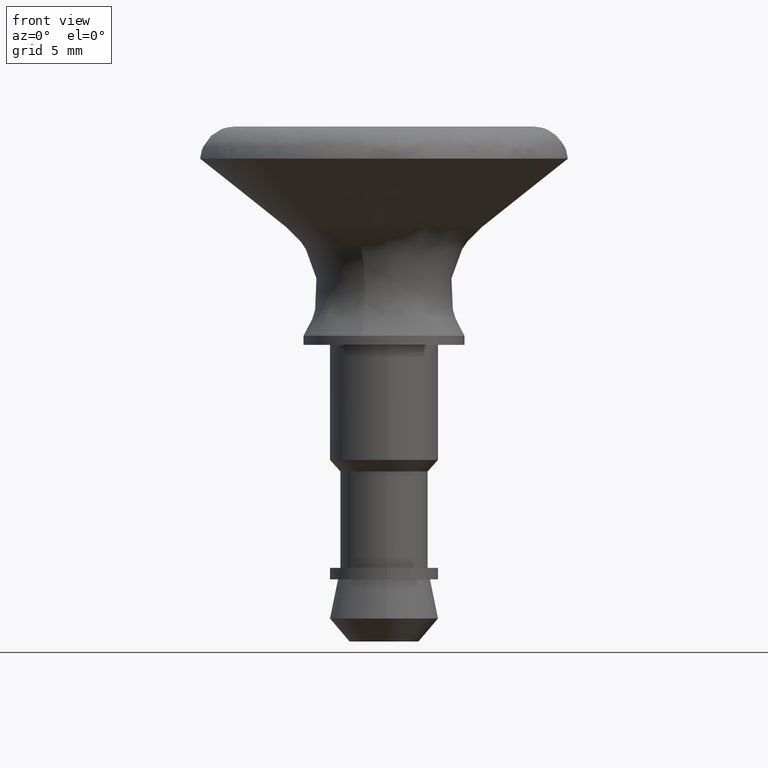
[diagram: clean part render]
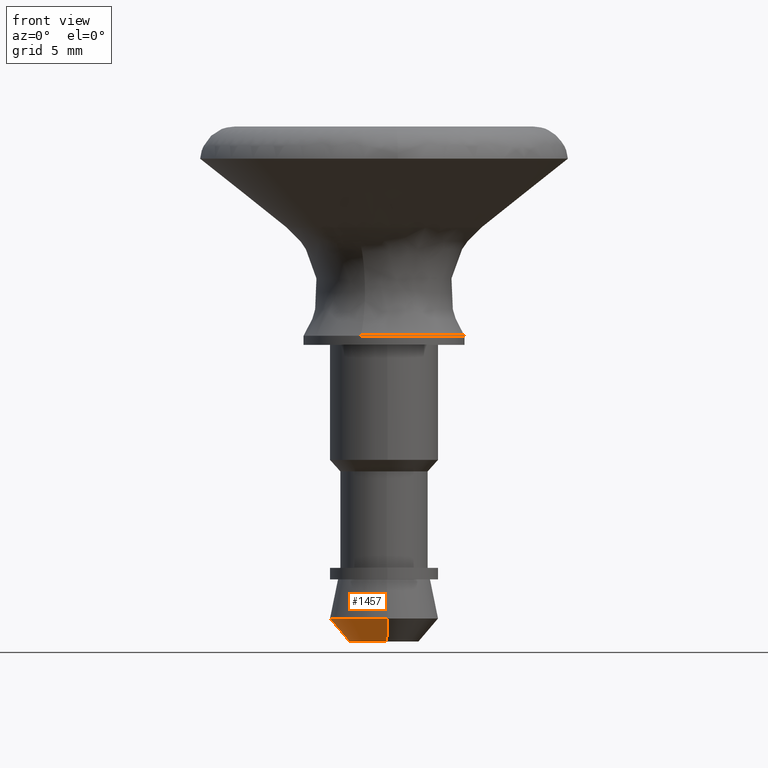
[diagram: same view with one face highlighted and labeled with its STEP entity id]
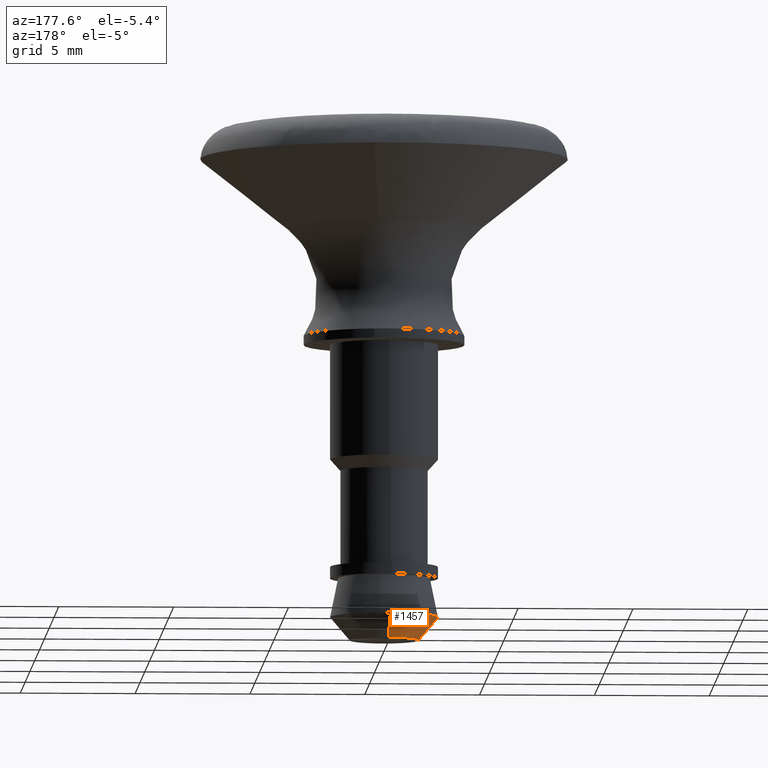
[diagram: same view with one face highlighted and labeled with its STEP entity id]
A machine part, front view. The second image highlights one B-rep face of the part: STEP entity #1457.
A second angle (auxiliary view) of the same face is appended — the face is thin or edge-on in the first view.
In plain terms, the highlighted face is a freeform B-spline surface patch.
Its self-contained STEP definition (entity closure, byte-faithful):
#1258=CARTESIAN_POINT('',(0.153692986142640,-2.344905054886845,-11.900017217113840));
#1259=VERTEX_POINT('',#1258);
#1307=CARTESIAN_POINT('',(-0.184378875007408,2.342755734274979,-11.899999999993170));
#1308=VERTEX_POINT('',#1307);
#1324=CARTESIAN_POINT('',(-2.350000000000000,0.0,-11.900000000000000));
#1325=VERTEX_POINT('',#1324);
#1326=CARTESIAN_POINT('',(-2.350000000000000,0.0,-11.900000000000000));
#1327=CARTESIAN_POINT('',(-2.350000000000001,2.172317655310255,-11.900000000000000));
#1328=CARTESIAN_POINT('',(-0.184378875007408,2.342755734274979,-11.899999999993168));
#1336=(BOUNDED_CURVE()B_SPLINE_CURVE(2,(#1326,#1327,#1328),.UNSPECIFIED.,.F.,.U.)B_SPLINE_CURVE_WITH_KNOTS((3,3),(0.0,0.236331300625960),.UNSPECIFIED.)CURVE()GEOMETRIC_REPRESENTATION_ITEM()RATIONAL_B_SPLINE_CURVE((1.0,0.723120658613172,0.969723356157609))REPRESENTATION_ITEM(''));
#1337=EDGE_CURVE('',#1325,#1308,#1336,.T.);
#1339=CARTESIAN_POINT('',(0.153692986142640,-2.344905054886846,-11.900017217113831));
#1340=CARTESIAN_POINT('',(0.076926835432969,-2.349937543892106,-11.900016953165647));
#1341=CARTESIAN_POINT('',(-0.000004025535872,-2.349938582107781,-11.900016671351059));
#1342=CARTESIAN_POINT('',(-2.350001946876827,-2.349970296359317,-11.900008062794141));
#1343=CARTESIAN_POINT('',(-2.350000000000000,0.0,-11.900000000000000));
#1351=(BOUNDED_CURVE()B_SPLINE_CURVE(2,(#1339,#1340,#1341,#1342,#1343),.UNSPECIFIED.,.F.,.U.)B_SPLINE_CURVE_WITH_KNOTS((3,2,3),(0.738580720876334,0.750000000000000,1.0),.UNSPECIFIED.)CURVE()GEOMETRIC_REPRESENTATION_ITEM()RATIONAL_B_SPLINE_CURVE((0.974465148868370,0.986621482323761,1.0,0.707106781186547,1.0))REPRESENTATION_ITEM(''));
#1352=EDGE_CURVE('',#1259,#1325,#1351,.T.);
#1391=CARTESIAN_POINT('',(-0.116013345750239,1.474089323231154,-12.925000000000001));
#1392=CARTESIAN_POINT('',(-1.590102668981393,1.358075977480914,-12.925000000000002));
#1393=CARTESIAN_POINT('',(-1.474089323231154,-0.116013345750239,-12.925000000000001));
#1394=CARTESIAN_POINT('',(-1.358075977480914,-1.590102668981393,-12.925000000000002));
#1395=CARTESIAN_POINT('',(0.116013345750239,-1.474089323231154,-12.925000000000001));
#1396=CARTESIAN_POINT('',(-0.186088013190692,2.364472394548896,-11.874375000000001));
#1397=CARTESIAN_POINT('',(-2.550560407739587,2.178384381358204,-11.874375000000001));
#1398=CARTESIAN_POINT('',(-2.364472394548896,-0.186088013190692,-11.874375000000001));
#1399=CARTESIAN_POINT('',(-2.178384381358204,-2.550560407739587,-11.874375000000001));
#1400=CARTESIAN_POINT('',(0.186088013190692,-2.364472394548896,-11.874375000000001));
#1408=(BOUNDED_SURFACE()B_SPLINE_SURFACE(2,1,((#1391,#1396),(#1392,#1397),(#1393,#1398),(#1394,#1399),(#1395,#1400)),.UNSPECIFIED.,.F.,.F.,.U.)B_SPLINE_SURFACE_WITH_KNOTS((3,2,3),(2,2),(0.0,3.929700088617869,7.859400177235737),(0.0,1.0),.UNSPECIFIED.)GEOMETRIC_REPRESENTATION_ITEM()RATIONAL_B_SPLINE_SURFACE(((1.0,1.0),(0.707106781186548,0.707106781186548),(1.0,1.0),(0.707106781186548,0.707106781186548),(1.0,1.0)))REPRESENTATION_ITEM('')SURFACE());
#1409=ORIENTED_EDGE('',*,*,#1337,.T.);
#1410=CARTESIAN_POINT('',(-0.117680797802618,1.495276308871712,-12.899999999982560));
#1411=VERTEX_POINT('',#1410);
#1412=CARTESIAN_POINT('',(-0.117680797802618,1.495276308871712,-12.899999999982560));
#1413=CARTESIAN_POINT('',(-0.184378875007408,2.342755734274979,-11.899999999993170));
#1414=QUASI_UNIFORM_CURVE('',1,(#1412,#1413),.UNSPECIFIED.,.F.,.U.);
#1415=EDGE_CURVE('',#1411,#1308,#1414,.T.);
#1416=ORIENTED_EDGE('',*,*,#1415,.F.);
#1417=CARTESIAN_POINT('',(-1.499900000000000,0.0,-12.900000000000000));
#1418=VERTEX_POINT('',#1417);
#1419=CARTESIAN_POINT('',(-1.499900000000000,0.0,-12.900000000000000));
#1420=CARTESIAN_POINT('',(-1.499900000000001,1.386493298216295,-12.899999999999999));
#1421=CARTESIAN_POINT('',(-0.117680797802617,1.495276308871712,-12.899999999982557));
#1429=(BOUNDED_CURVE()B_SPLINE_CURVE(2,(#1419,#1420,#1421),.UNSPECIFIED.,.F.,.U.)B_SPLINE_CURVE_WITH_KNOTS((3,3),(0.0,0.236331300605422),.UNSPECIFIED.)CURVE()GEOMETRIC_REPRESENTATION_ITEM()RATIONAL_B_SPLINE_CURVE((1.0,0.723120658637233,0.969723356114749))REPRESENTATION_ITEM(''));
#1430=EDGE_CURVE('',#1418,#1411,#1429,.T.);
#1431=ORIENTED_EDGE('',*,*,#1430,.F.);
#1432=CARTESIAN_POINT('',(0.117680797802617,-1.495276308871712,-12.899999999982560));
#1433=VERTEX_POINT('',#1432);
#1434=CARTESIAN_POINT('',(0.117680797802617,-1.495276308871712,-12.899999999982558));
#1435=CARTESIAN_POINT('',(0.058931231620616,-1.499900000000000,-12.900000000000002));
#1436=CARTESIAN_POINT('',(0.0,-1.499900000000000,-12.900000000000000));
#1437=CARTESIAN_POINT('',(-1.499899999999999,-1.499899999999999,-12.899999999999999));
#1438=CARTESIAN_POINT('',(-1.499900000000000,0.0,-12.900000000000000));
#1446=(BOUNDED_CURVE()B_SPLINE_CURVE(2,(#1434,#1435,#1436,#1437,#1438),.UNSPECIFIED.,.F.,.U.)B_SPLINE_CURVE_WITH_KNOTS((3,2,3),(0.736331300605422,0.750000000000000,1.0),.UNSPECIFIED.)CURVE()GEOMETRIC_REPRESENTATION_ITEM()RATIONAL_B_SPLINE_CURVE((0.969723356114749,0.983986122549315,1.0,0.707106781186547,1.0))REPRESENTATION_ITEM(''));
#1447=EDGE_CURVE('',#1433,#1418,#1446,.T.);
#1448=ORIENTED_EDGE('',*,*,#1447,.F.);
#1449=CARTESIAN_POINT('',(0.117680797802617,-1.495276308871712,-12.899999999982560));
#1450=CARTESIAN_POINT('',(0.153692986142640,-2.344905054886845,-11.900017217113840));
#1451=QUASI_UNIFORM_CURVE('',1,(#1449,#1450),.UNSPECIFIED.,.F.,.U.);
#1452=EDGE_CURVE('',#1433,#1259,#1451,.T.);
#1453=ORIENTED_EDGE('',*,*,#1452,.T.);
#1454=ORIENTED_EDGE('',*,*,#1352,.T.);
#1455=EDGE_LOOP('',(#1409,#1416,#1431,#1448,#1453,#1454));
#1456=FACE_OUTER_BOUND('',#1455,.T.);
#1457=ADVANCED_FACE('',(#1456),#1408,.T.);